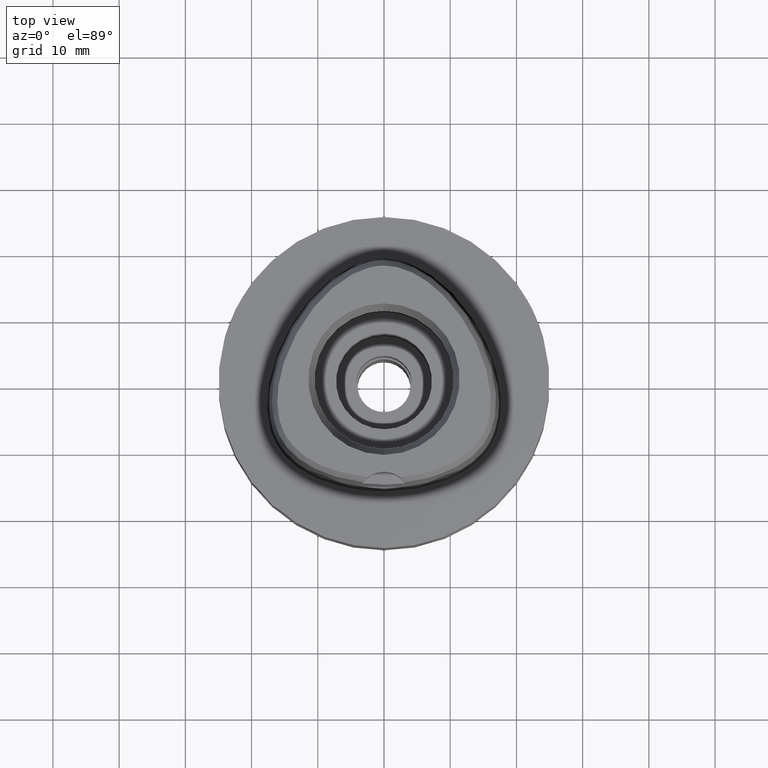
[diagram: clean part render]
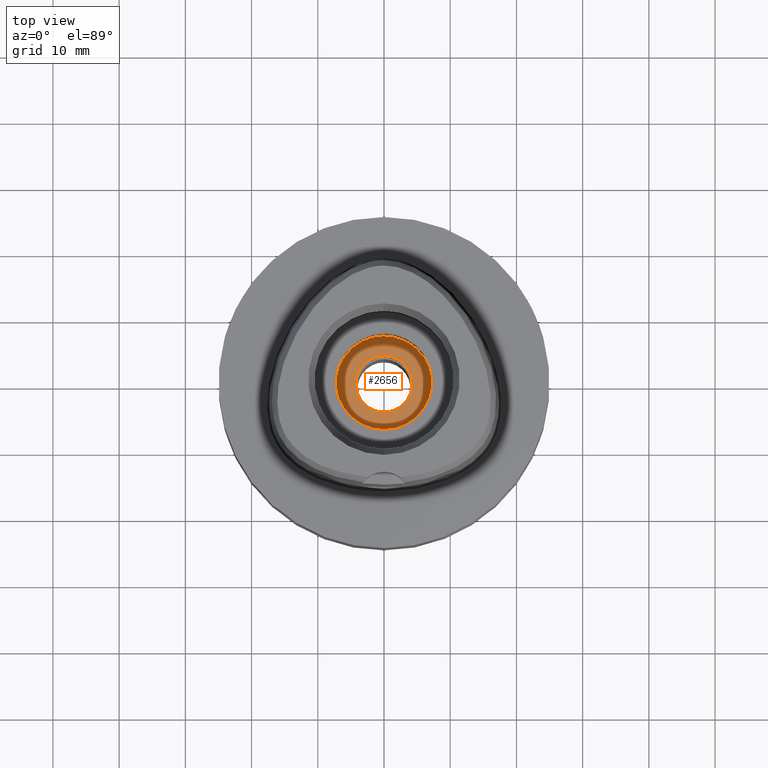
[diagram: same view with one face highlighted and labeled with its STEP entity id]
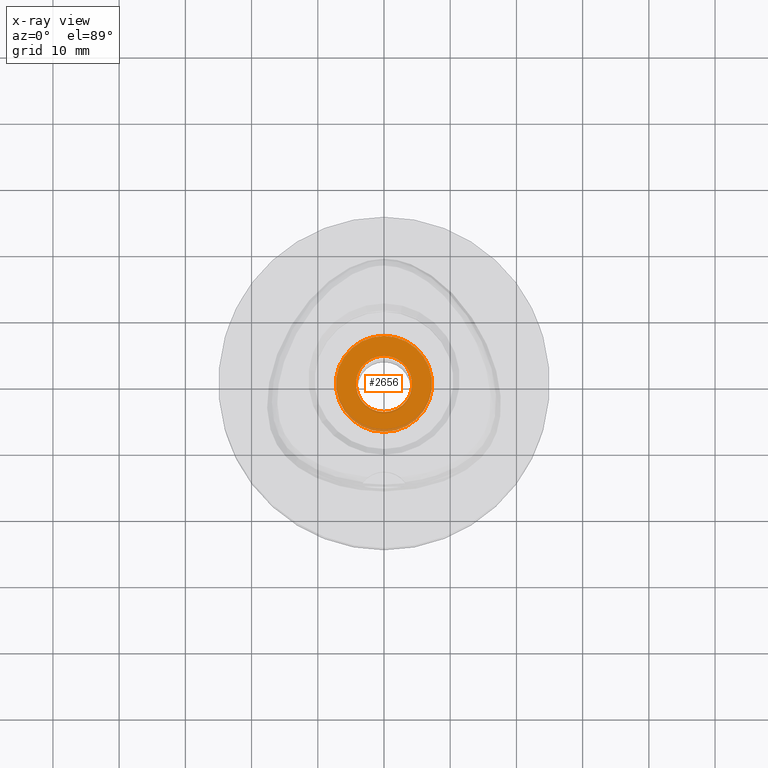
[diagram: x-ray of the same camera — body ghosted, the highlighted face saturated]
A machine part, top view. The second image highlights one B-rep face of the part: STEP entity #2656.
The next image is the same camera in x-ray: the body ghosted, the highlighted face saturated — about 5% of this face is hidden behind the body in this view.
In plain terms, the highlighted planar face has unit normal (0, 0, -1).
Its self-contained STEP definition (entity closure, byte-faithful):
#766=CARTESIAN_POINT('',(0.E0,1.610410540879E-14,-1.2E1));
#767=DIRECTION('',(0.E0,0.E0,-1.E0));
#768=DIRECTION('',(0.E0,-1.E0,0.E0));
#769=AXIS2_PLACEMENT_3D('',#766,#767,#768);
#774=CARTESIAN_POINT('',(0.E0,1.610410540879E-14,-1.2E1));
#775=DIRECTION('',(0.E0,0.E0,-1.E0));
#776=DIRECTION('',(0.E0,1.E0,0.E0));
#777=AXIS2_PLACEMENT_3D('',#774,#775,#776);
#782=CARTESIAN_POINT('',(0.E0,1.258324586124E-14,-1.2E1));
#783=DIRECTION('',(0.E0,0.E0,1.E0));
#784=DIRECTION('',(0.E0,-1.E0,0.E0));
#785=AXIS2_PLACEMENT_3D('',#782,#783,#784);
#790=CARTESIAN_POINT('',(0.E0,1.258324586124E-14,-1.2E1));
#791=DIRECTION('',(0.E0,0.E0,1.E0));
#792=DIRECTION('',(0.E0,1.E0,0.E0));
#793=AXIS2_PLACEMENT_3D('',#790,#791,#792);
#1615=CARTESIAN_POINT('',(0.E0,4.25E0,-1.2E1));
#1616=VERTEX_POINT('',#1615);
#1617=CARTESIAN_POINT('',(0.E0,-4.25E0,-1.2E1));
#1618=VERTEX_POINT('',#1617);
#1619=CARTESIAN_POINT('',(0.E0,-7.25E0,-1.2E1));
#1620=CARTESIAN_POINT('',(0.E0,7.25E0,-1.2E1));
#1621=VERTEX_POINT('',#1619);
#1622=VERTEX_POINT('',#1620);
#2641=CARTESIAN_POINT('',(0.E0,1.077689183250E-14,-1.2E1));
#2642=DIRECTION('',(0.E0,0.E0,-1.E0));
#2643=DIRECTION('',(0.E0,-1.E0,0.E0));
#2644=AXIS2_PLACEMENT_3D('',#2641,#2642,#2643);
#2645=PLANE('',#2644);
#2647=ORIENTED_EDGE('',*,*,#2646,.T.);
#2649=ORIENTED_EDGE('',*,*,#2648,.T.);
#2650=EDGE_LOOP('',(#2647,#2649));
#2651=FACE_OUTER_BOUND('',#2650,.F.);
#2652=ORIENTED_EDGE('',*,*,#2634,.T.);
#2653=ORIENTED_EDGE('',*,*,#2623,.T.);
#2654=EDGE_LOOP('',(#2652,#2653));
#2655=FACE_BOUND('',#2654,.F.);
#770=CIRCLE('',#769,7.25E0);
#778=CIRCLE('',#777,7.25E0);
#786=CIRCLE('',#785,4.25E0);
#794=CIRCLE('',#793,4.25E0);
#2623=EDGE_CURVE('',#1616,#1618,#794,.T.);
#2634=EDGE_CURVE('',#1618,#1616,#786,.T.);
#2646=EDGE_CURVE('',#1621,#1622,#770,.T.);
#2648=EDGE_CURVE('',#1622,#1621,#778,.T.);
#2656=ADVANCED_FACE('',(#2651,#2655),#2645,.F.);